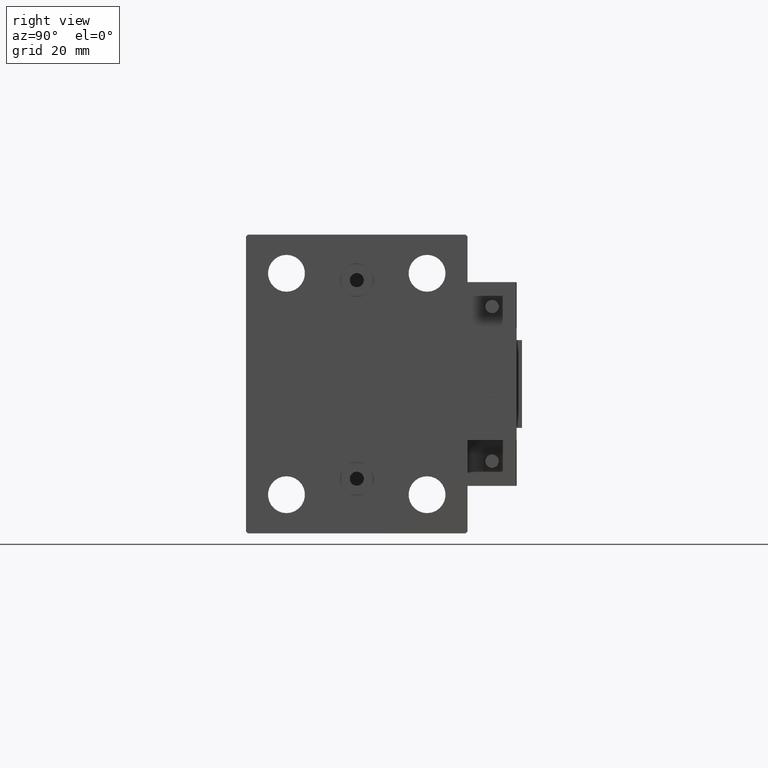
[diagram: clean part render]
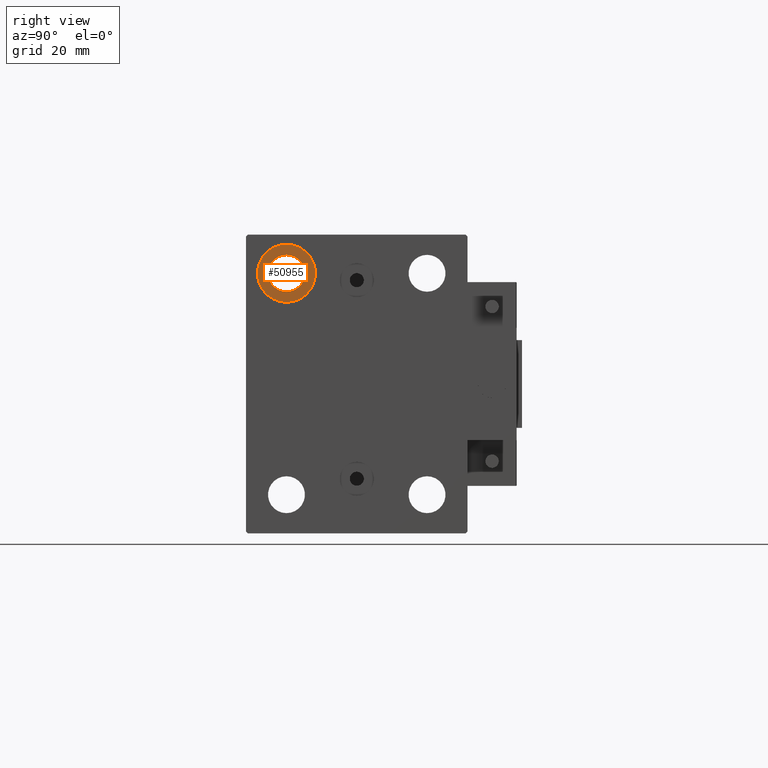
[diagram: same view with one face highlighted and labeled with its STEP entity id]
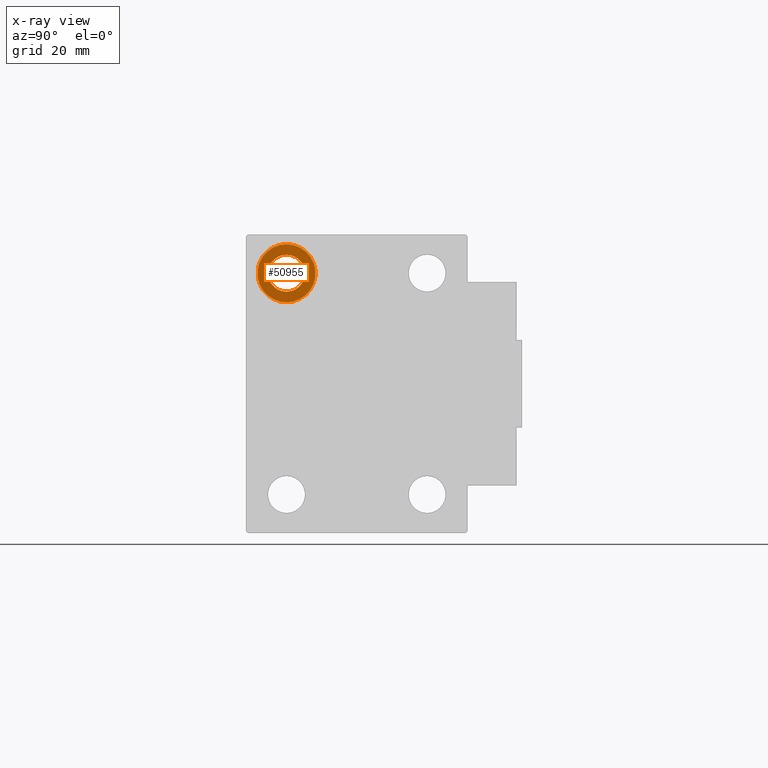
[diagram: x-ray of the same camera — body ghosted, the highlighted face saturated]
A machine part, right view. The second image highlights one B-rep face of the part: STEP entity #50955.
The next image is the same camera in x-ray: the body ghosted, the highlighted face saturated — about 0% of this face is hidden behind the body in this view.
In plain terms, the highlighted planar face has unit normal (1, 0, 0).
Its self-contained STEP definition (entity closure, byte-faithful):
#614 = CIRCLE ( 'NONE', #7306, 5.249999999999997335 ) ;
#1613 = FACE_BOUND ( 'NONE', #17970, .T. ) ;
#1684 = CARTESIAN_POINT ( 'NONE',  ( 62.00000000000000000, -19.99999999999999645, 39.74999999999999289 ) ) ;
#3979 = CIRCLE ( 'NONE', #46597, 8.249999999999992895 ) ;
#4450 = CARTESIAN_POINT ( 'NONE',  ( 62.00000000000000000, -19.99999999999999645, 36.75000000000000000 ) ) ;
#4575 = ORIENTED_EDGE ( 'NONE', *, *, #18843, .T. ) ;
#4672 = DIRECTION ( 'NONE',  ( -1.000000000000000000, -0.000000000000000000, -0.000000000000000000 ) ) ;
#5019 = PLANE ( 'NONE',  #37028 ) ;
#7306 = AXIS2_PLACEMENT_3D ( 'NONE', #48111, #4672, #41074 ) ;
#8502 = CARTESIAN_POINT ( 'NONE',  ( 62.00000000000000000, -19.99999999999999645, 23.25000000000000355 ) ) ;
#8748 = ORIENTED_EDGE ( 'NONE', *, *, #40872, .T. ) ;
#9458 = DIRECTION ( 'NONE',  ( 0.000000000000000000, 0.000000000000000000, 1.000000000000000000 ) ) ;
#13913 = VERTEX_POINT ( 'NONE', #44658 ) ;
#14656 = ORIENTED_EDGE ( 'NONE', *, *, #34528, .F. ) ;
#15025 = CIRCLE ( 'NONE', #41786, 8.249999999999992895 ) ;
#17557 = CARTESIAN_POINT ( 'NONE',  ( 62.00000000000000000, 0.000000000000000000, 0.000000000000000000 ) ) ;
#17921 = DIRECTION ( 'NONE',  ( 0.000000000000000000, 0.000000000000000000, 1.000000000000000000 ) ) ;
#17970 = EDGE_LOOP ( 'NONE', ( #8748, #4575 ) ) ;
#18843 = EDGE_CURVE ( 'NONE', #13913, #20576, #614, .T. ) ;
#18967 = DIRECTION ( 'NONE',  ( 0.000000000000000000, 0.000000000000000000, -1.000000000000000000 ) ) ;
#20576 = VERTEX_POINT ( 'NONE', #4450 ) ;
#21485 = DIRECTION ( 'NONE',  ( 1.000000000000000000, 0.000000000000000000, -0.000000000000000000 ) ) ;
#21753 = AXIS2_PLACEMENT_3D ( 'NONE', #23649, #31279, #18967 ) ;
#21854 = CARTESIAN_POINT ( 'NONE',  ( 62.00000000000000000, -19.99999999999999645, 31.50000000000000000 ) ) ;
#23332 = VERTEX_POINT ( 'NONE', #8502 ) ;
#23649 = CARTESIAN_POINT ( 'NONE',  ( 62.00000000000000000, -19.99999999999999645, 31.50000000000000000 ) ) ;
#24288 = DIRECTION ( 'NONE',  ( -1.000000000000000000, -0.000000000000000000, -0.000000000000000000 ) ) ;
#24814 = CARTESIAN_POINT ( 'NONE',  ( 62.00000000000000000, -19.99999999999999645, 31.50000000000000000 ) ) ;
#27970 = DIRECTION ( 'NONE',  ( 0.000000000000000000, 0.000000000000000000, 1.000000000000000000 ) ) ;
#29207 = ORIENTED_EDGE ( 'NONE', *, *, #39785, .F. ) ;
#29365 = FACE_OUTER_BOUND ( 'NONE', #38429, .T. ) ;
#29471 = DIRECTION ( 'NONE',  ( -1.000000000000000000, -0.000000000000000000, -0.000000000000000000 ) ) ;
#31279 = DIRECTION ( 'NONE',  ( -1.000000000000000000, -0.000000000000000000, -0.000000000000000000 ) ) ;
#34528 = EDGE_CURVE ( 'NONE', #23332, #51612, #3979, .T. ) ;
#37028 = AXIS2_PLACEMENT_3D ( 'NONE', #17557, #21485, #9458 ) ;
#38429 = EDGE_LOOP ( 'NONE', ( #14656, #29207 ) ) ;
#39785 = EDGE_CURVE ( 'NONE', #51612, #23332, #15025, .T. ) ;
#40872 = EDGE_CURVE ( 'NONE', #20576, #13913, #42665, .T. ) ;
#41074 = DIRECTION ( 'NONE',  ( 0.000000000000000000, 0.000000000000000000, -1.000000000000000000 ) ) ;
#41786 = AXIS2_PLACEMENT_3D ( 'NONE', #21854, #29471, #17921 ) ;
#42665 = CIRCLE ( 'NONE', #21753, 5.249999999999997335 ) ;
#44658 = CARTESIAN_POINT ( 'NONE',  ( 62.00000000000000000, -19.99999999999999645, 26.25000000000000355 ) ) ;
#46597 = AXIS2_PLACEMENT_3D ( 'NONE', #24814, #24288, #27970 ) ;
#48111 = CARTESIAN_POINT ( 'NONE',  ( 62.00000000000000000, -19.99999999999999645, 31.50000000000000000 ) ) ;
#50955 = ADVANCED_FACE ( 'NONE', ( #29365, #1613 ), #5019, .T. ) ;
#51612 = VERTEX_POINT ( 'NONE', #1684 ) ;